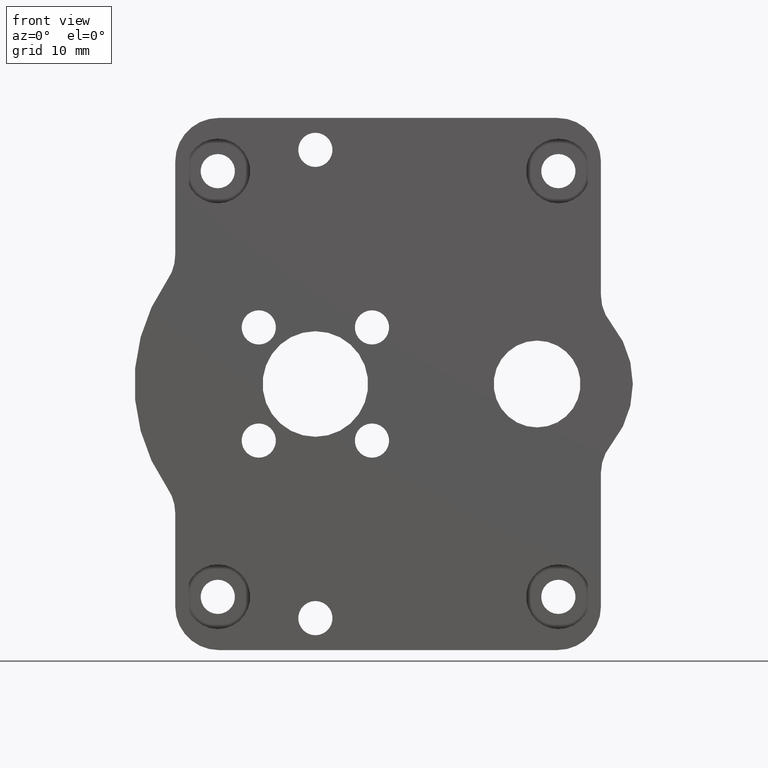
[diagram: clean part render]
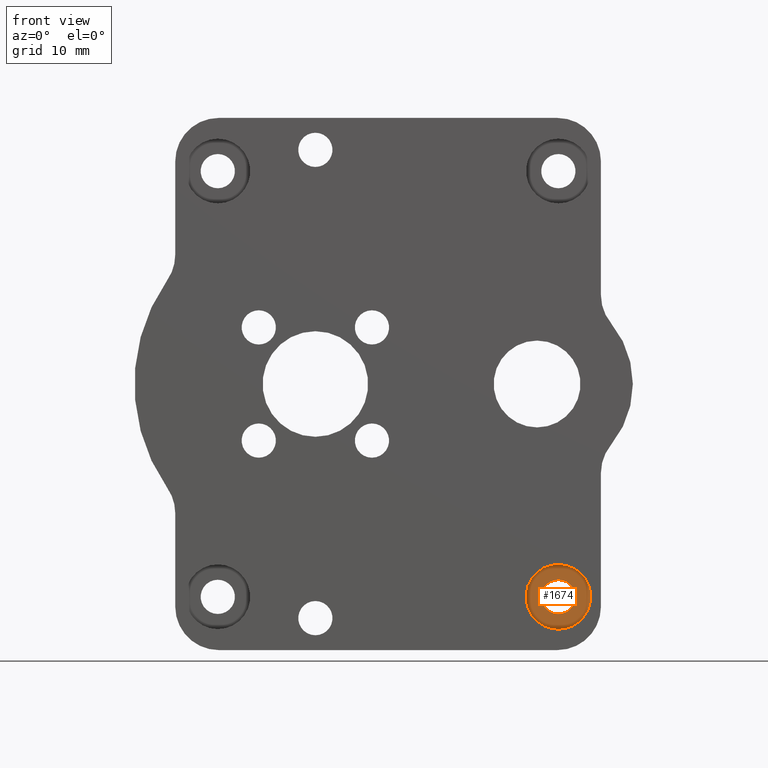
[diagram: same view with one face highlighted and labeled with its STEP entity id]
A machine part, front view. The second image highlights one B-rep face of the part: STEP entity #1674.
In plain terms, the highlighted planar face has unit normal (0, 1, 0).
Its self-contained STEP definition (entity closure, byte-faithful):
#50 = CIRCLE ( 'NONE', #163, 0.1004999999999996452 ) ;
#58 = CARTESIAN_POINT ( 'NONE',  ( 2.249999999999999112, 0.2000000000000000111, -2.913000000000000256 ) ) ;
#62 = ORIENTED_EDGE ( 'NONE', *, *, #336, .F. ) ;
#64 = DIRECTION ( 'NONE',  ( 0.0000000000000000000, 1.000000000000000000, 0.0000000000000000000 ) ) ;
#163 = AXIS2_PLACEMENT_3D ( 'NONE', #243, #651, #1772 ) ;
#226 = VERTEX_POINT ( 'NONE', #288 ) ;
#243 = CARTESIAN_POINT ( 'NONE',  ( 2.249999999999999112, 0.2000000000000000111, -2.812500000000000444 ) ) ;
#288 = CARTESIAN_POINT ( 'NONE',  ( 2.249999999999999112, 0.2000000000000000111, -2.712000000000001076 ) ) ;
#336 = EDGE_CURVE ( 'NONE', #226, #1889, #2120, .T. ) ;
#348 = DIRECTION ( 'NONE',  ( -0.0000000000000000000, -1.000000000000000000, -0.0000000000000000000 ) ) ;
#391 = ORIENTED_EDGE ( 'NONE', *, *, #1251, .F. ) ;
#435 = AXIS2_PLACEMENT_3D ( 'NONE', #2081, #348, #1666 ) ;
#479 = CARTESIAN_POINT ( 'NONE',  ( 2.249999999999999112, 0.2000000000000000111, -2.812500000000000444 ) ) ;
#546 = FACE_OUTER_BOUND ( 'NONE', #1194, .T. ) ;
#552 = CARTESIAN_POINT ( 'NONE',  ( 2.249999999999999112, 0.2000000000000000111, -2.812500000000000444 ) ) ;
#590 = AXIS2_PLACEMENT_3D ( 'NONE', #552, #979, #1419 ) ;
#651 = DIRECTION ( 'NONE',  ( -0.0000000000000000000, -1.000000000000000000, -0.0000000000000000000 ) ) ;
#657 = CIRCLE ( 'NONE', #435, 0.1899999999999998912 ) ;
#700 = CARTESIAN_POINT ( 'NONE',  ( 2.350499999999999368, 0.2000000000000000111, -2.812500000000000444 ) ) ;
#712 = EDGE_CURVE ( 'NONE', #1621, #2016, #657, .T. ) ;
#744 = EDGE_LOOP ( 'NONE', ( #62, #391 ) ) ;
#849 = DIRECTION ( 'NONE',  ( 0.0000000000000000000, -0.0000000000000000000, 1.000000000000000000 ) ) ;
#979 = DIRECTION ( 'NONE',  ( -0.0000000000000000000, -1.000000000000000000, -0.0000000000000000000 ) ) ;
#1049 = EDGE_CURVE ( 'NONE', #2016, #1621, #1111, .T. ) ;
#1068 = ORIENTED_EDGE ( 'NONE', *, *, #712, .T. ) ;
#1111 = CIRCLE ( 'NONE', #590, 0.1899999999999998912 ) ;
#1194 = EDGE_LOOP ( 'NONE', ( #1068, #1525 ) ) ;
#1205 = FACE_BOUND ( 'NONE', #744, .T. ) ;
#1251 = EDGE_CURVE ( 'NONE', #1889, #226, #50, .T. ) ;
#1371 = PLANE ( 'NONE',  #1943 ) ;
#1419 = DIRECTION ( 'NONE',  ( 0.0000000000000000000, 0.0000000000000000000, -1.000000000000000000 ) ) ;
#1463 = AXIS2_PLACEMENT_3D ( 'NONE', #479, #2046, #1951 ) ;
#1525 = ORIENTED_EDGE ( 'NONE', *, *, #1049, .T. ) ;
#1577 = CARTESIAN_POINT ( 'NONE',  ( 2.249999999999999112, 0.2000000000000000111, -3.002500000000000391 ) ) ;
#1621 = VERTEX_POINT ( 'NONE', #1577 ) ;
#1666 = DIRECTION ( 'NONE',  ( 0.0000000000000000000, 0.0000000000000000000, -1.000000000000000000 ) ) ;
#1674 = ADVANCED_FACE ( 'NONE', ( #1205, #546 ), #1371, .F. ) ;
#1772 = DIRECTION ( 'NONE',  ( 0.0000000000000000000, 0.0000000000000000000, -1.000000000000000000 ) ) ;
#1889 = VERTEX_POINT ( 'NONE', #58 ) ;
#1943 = AXIS2_PLACEMENT_3D ( 'NONE', #700, #64, #849 ) ;
#1951 = DIRECTION ( 'NONE',  ( 0.0000000000000000000, 0.0000000000000000000, -1.000000000000000000 ) ) ;
#2016 = VERTEX_POINT ( 'NONE', #2101 ) ;
#2046 = DIRECTION ( 'NONE',  ( -0.0000000000000000000, -1.000000000000000000, -0.0000000000000000000 ) ) ;
#2081 = CARTESIAN_POINT ( 'NONE',  ( 2.249999999999999112, 0.2000000000000000111, -2.812500000000000444 ) ) ;
#2101 = CARTESIAN_POINT ( 'NONE',  ( 2.249999999999999112, 0.2000000000000000111, -2.622500000000000941 ) ) ;
#2120 = CIRCLE ( 'NONE', #1463, 0.1004999999999996452 ) ;